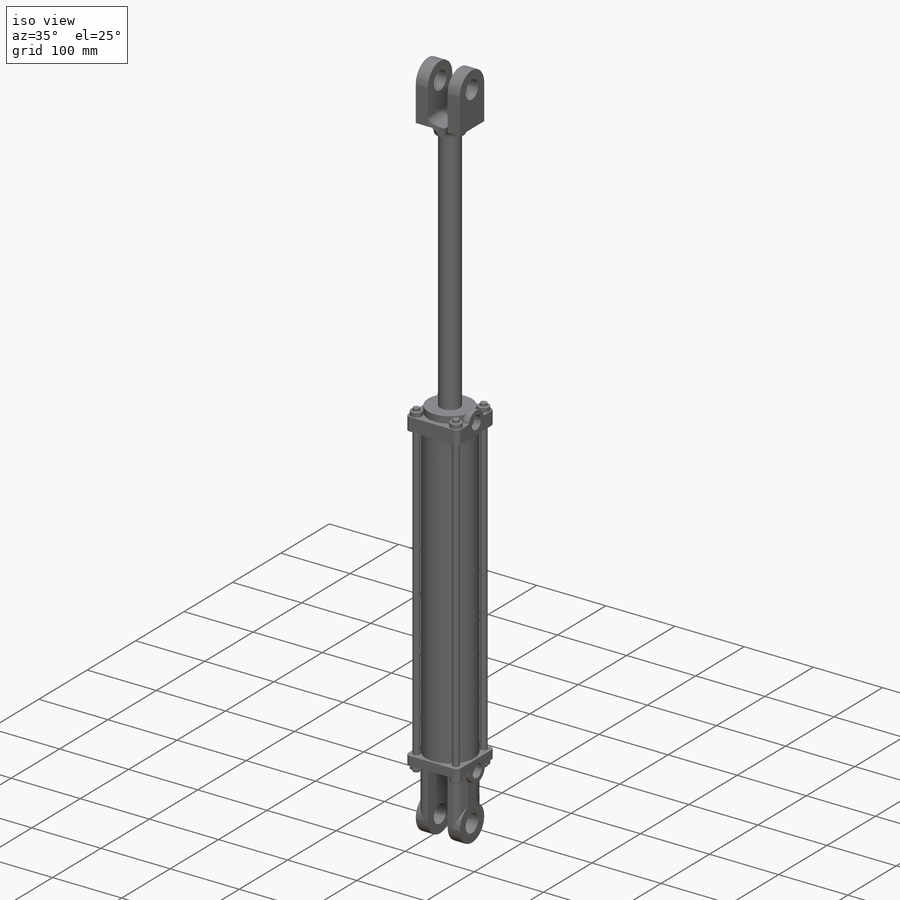
[diagram: iso view]
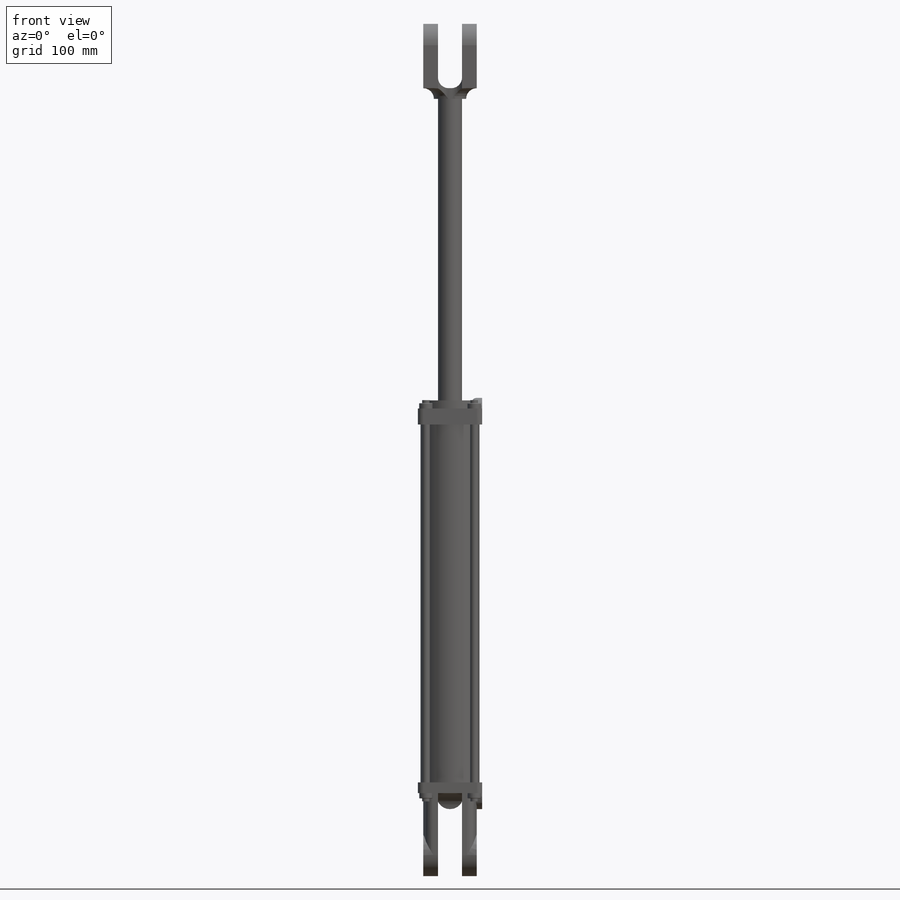
[diagram: front view]
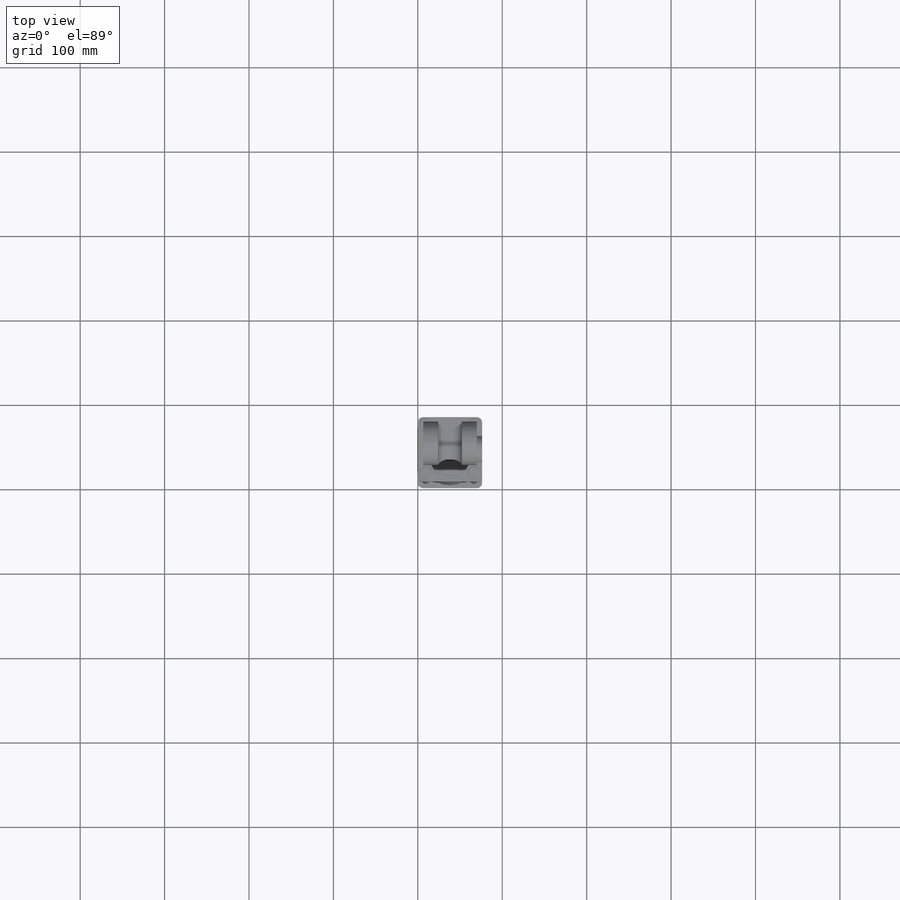
[diagram: top view]
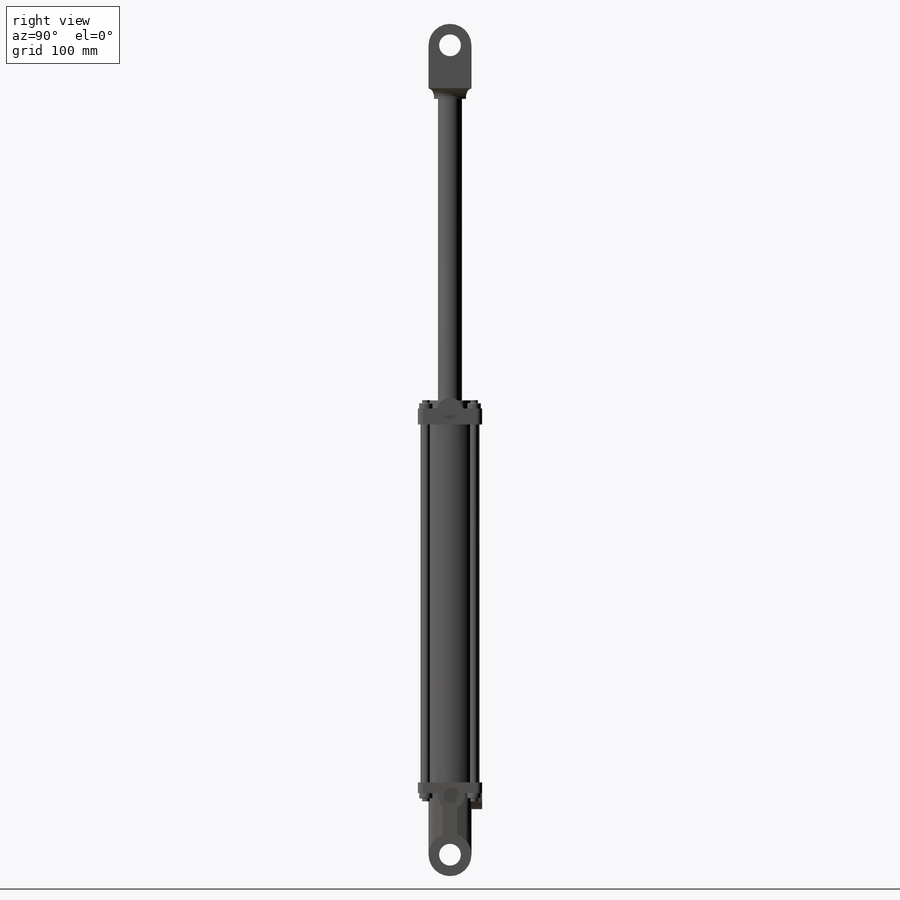
[diagram: right view]
SOLIDWORKS PART (.sldprt)
format: sldprt  version: not decoded by parser v0  size: 658,944 bytes
history: native  units: mm
features: sketch x20, extrude x14, fillet x9, cut_extrude x6, mirror x6, plane x3, material x1 (+11 scaffold rows collapsed)
feature tree (70):
  scaffold x11  (default folders/planes/origin — collapsed)
  material  "Material <not specified>"
  sketch  "Sketch1"  dims[D1=76.2mm D2=76.2mm]
  extrude  "Boss-Extrude1"  Depth=12.7mm
  plane  "Plane2"
  sketch  "Sketch2"  dims[D1=69.85mm D3=9.525mm D2=9.525mm D4=9.525mm D5=79.375mm]
  extrude  "Boss-Extrude2"  Depth=423.8625mm
  sketch  "Sketch3"  dims[D1=0.0mm D2=0.0mm]
  extrude  "Boss-Extrude5"  Depth=19.05mm
  plane  "Plane1"
  sketch  "Sketch4"  dims[D1=31.75mm]
  extrude  "Boss-Extrude6"  Depth=25.4mm
  sketch  "Sketch19"  dims[D1=19.05mm]
  sketch  "Sketch5"  dims[D1=17.4625mm D2=14.2875mm D3=50.8mm]
  extrude  "Boss-Extrude7"  Depth=98.425mm
  sketch  "Sketch9"  dims[c1.D1=~6.722632mm c2.D1=75.0deg]
  cut_extrude  "Cut-Extrude3"  [1 undecoded]
  mirror  "Mirror1"
  fillet  "Fillet2"  Radius=25.4mm
  sketch  "Sketch10"
  extrude  "Boss-Extrude8"  [1 undecoded]
  sketch  "Sketch8"  dims[D1=~25.796875mm D2=~21.162017mm]
  cut_extrude  "Cut-Extrude1"  [1 undecoded]
  fillet  "Fillet5"  Radius=9.525mm
  mirror  "Mirror2"
  sketch  "Sketch11"  dims[D1=31.75mm]
  extrude  "Boss-Extrude9"  [1 undecoded]
  sketch  "Sketch20"  dims[D1=19.05mm]
  cut_extrude  "Cut-Extrude6"  Depth=9.525mm
  fillet  "Fillet4"  Radius=6.35mm
  sketch  "Sketch12"  dims[D1=15.875mm D2=9.525mm]
  extrude  "Boss-Extrude10"  Depth=6.35mm
  sketch  "Sketch13"  dims[D1=~4.384177mm]
  extrude  "Boss-Extrude11"  Depth=9.906mm
  fillet  "Fillet6"  Radius=0.79375mm
  mirror  "Mirror4"
  mirror  "Mirror5"
  plane  "Plane3"
  mirror  "Mirror6"
  sketch  "Sketch14"  dims[D1=63.5mm]
  extrude  "Boss-Extrude12"  Depth=9.525mm
  sketch  "Sketch15"  dims[D1=28.575mm]
  extrude  "Boss-Extrude13"  Depth=357.1875mm
  sketch  "Sketch16"  dims[D1=38.1mm]
  extrude  "Boss-Extrude14"  Depth=12.7mm
  sketch  "Sketch17"
  extrude  "Boss-Extrude15"  Depth=76.2mm
  fillet  "Fillet7"  Radius=25.4mm
  sketch  "Sketch18"  dims[D1=~25.796875mm]
  cut_extrude  "Cut-Extrude4"  [1 undecoded]
  fillet  "Fillet11"  Radius=12.7mm
  fillet  "Fillet12"  Radius=12.7mm
  mirror  "Mirror7"
  cut_extrude  "Cut-Extrude5"  Depth=9.525mm
  fillet  "Fillet13"  Radius=19.05mm
  sketch  "Sketch21"  dims[D1=31.75mm]
  extrude  "Boss-Extrude16"  Depth=12.7mm
  fillet  "Fillet14"  Radius=6.35mm
  sketch  "Sketch22"  dims[D1=19.05mm]
  cut_extrude  "Cut-Extrude7"  Depth=9.525mm
decode coverage: 42 of 55 modeling features carry decoded parameters
note: ~ marks probable driven/reference dimensions
note: 5 parameter values undecoded
summary: no parameter record found for 5 features
note: suppression state not decoded; provenance and decode notes live in map.json
